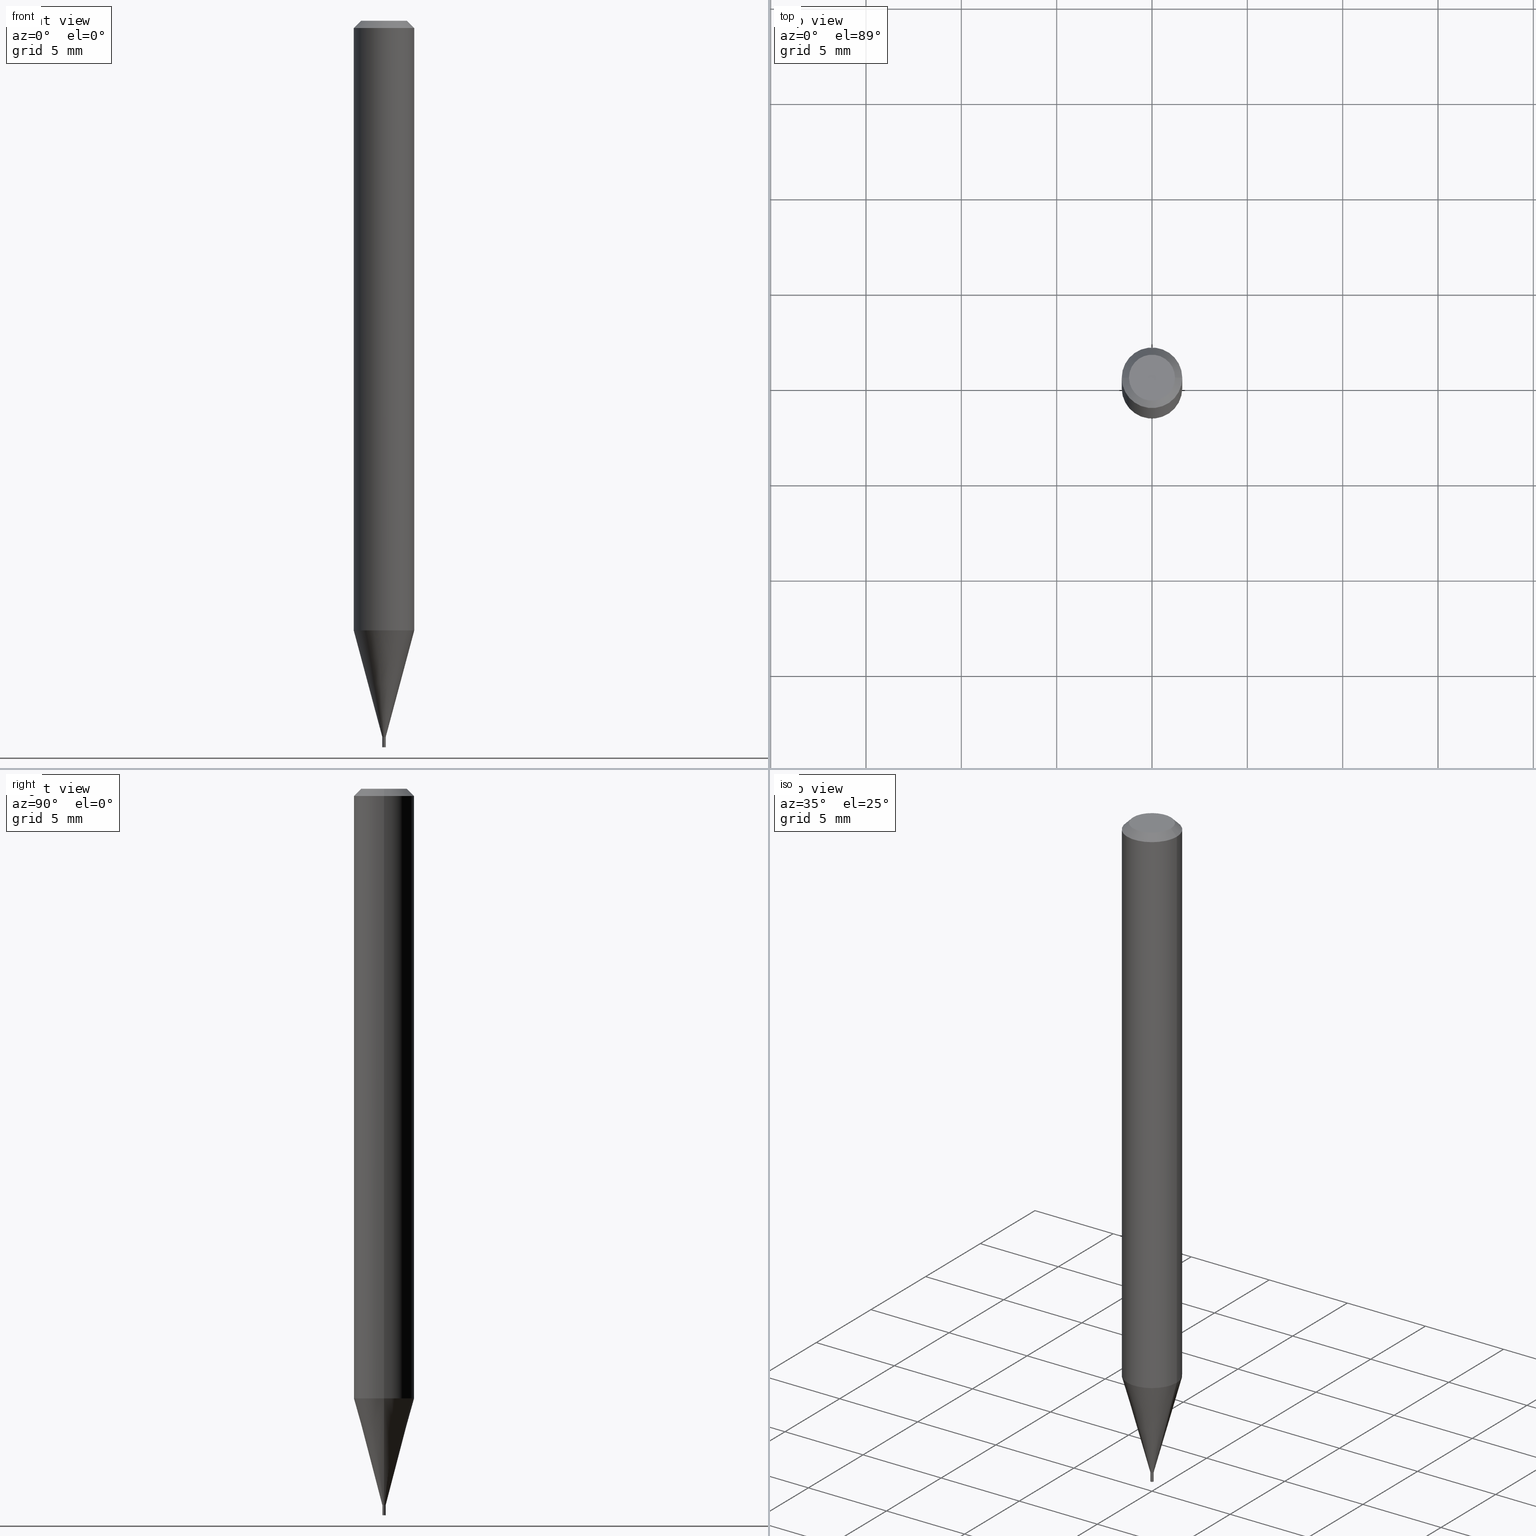
[diagram: canonical four-view strip — front | top / right | iso, engineering-drawing reading convention]
A machine part, canonical four-view strip (front | top / right | iso — engineering-drawing reading convention). The complete STEP part file that produces these views, byte-faithful:
ISO-10303-21;
HEADER;
FILE_DESCRIPTION (( 'STEP AP203' ),
    '1' );
FILE_NAME ('04113.STEP',
    '2024-03-14T17:01:19',
    ( '' ),
    ( '' ),
    'SwSTEP 2.0',
    'SolidWorks 2023',
    '' );
FILE_SCHEMA (( 'CONFIG_CONTROL_DESIGN' ));
ENDSEC;

DATA;
#1 = EDGE_LOOP ( 'NONE', ( #4, #152 ) ) ;
#2 = ADVANCED_FACE ( 'NONE', ( #253 ), #115, .T. ) ;
#3 = EDGE_CURVE ( 'NONE', #218, #86, #352, .T. ) ;
#4 = ORIENTED_EDGE ( 'NONE', *, *, #431, .T. ) ;
#5 = AXIS2_PLACEMENT_3D ( 'NONE', #92, #380, #197 ) ;
#6 = EDGE_CURVE ( 'NONE', #86, #117, #191, .T. ) ;
#7 = ORIENTED_EDGE ( 'NONE', *, *, #368, .F. ) ;
#8 = AXIS2_PLACEMENT_3D ( 'NONE', #246, #243, #70 ) ;
#9 = EDGE_LOOP ( 'NONE', ( #325, #121, #413, #80 ) ) ;
#10 = DIRECTION ( 'NONE',  ( -0.2588190451025215166, 5.211531920934551042E-15, 0.9659258262890679791 ) ) ;
#11 = ORIENTED_EDGE ( 'NONE', *, *, #14, .F. ) ;
#12 = DIRECTION ( 'NONE',  ( -2.445468806185136597E-29, 3.491481338843145583E-15, 1.000000000000000000 ) ) ;
#13 = ORIENTED_EDGE ( 'NONE', *, *, #179, .F. ) ;
#14 = EDGE_CURVE ( 'NONE', #293, #132, #345, .T. ) ;
#15 = APPROVAL ( #421, 'UNSPECIFIED' ) ;
#16 = CYLINDRICAL_SURFACE ( 'NONE', #426, 0.003500000000000000507 ) ;
#17 = VECTOR ( 'NONE', #47, 39.37007874015748143 ) ;
#18 = DESIGN_CONTEXT ( 'detailed design', #38, 'design' ) ;
#19 = DIRECTION ( 'NONE',  ( 1.000000000000000000, -6.982962677686265922E-15, 4.876176775795935793E-29 ) ) ;
#20 = CARTESIAN_POINT ( 'NONE',  ( 3.616848364347816762E-29, -5.163900900149011871E-15, -1.478999999999999648 ) ) ;
#21 = PRODUCT_DEFINITION_SHAPE ( 'NONE', 'NONE',  #284 ) ;
#22 = CARTESIAN_POINT ( 'NONE',  ( 3.078378148200359135E-29, -4.395108140884777792E-15, -1.258809002353435513 ) ) ;
#23 = AXIS2_PLACEMENT_3D ( 'NONE', #453, #343, #208 ) ;
#24 = ADVANCED_FACE ( 'NONE', ( #460 ), #350, .F. ) ;
#25 = LINE ( 'NONE', #102, #261 ) ;
#26 = DIRECTION ( 'NONE',  ( -1.000000000000000000, 6.982962677686266711E-15, 0.000000000000000000 ) ) ;
#27 = VECTOR ( 'NONE', #180, 39.37007874015748143 ) ;
#28 = CARTESIAN_POINT ( 'NONE',  ( 0.000000000000000000, 0.000000000000000000, 0.000000000000000000 ) ) ;
#29 = AXIS2_PLACEMENT_3D ( 'NONE', #442, #338, #26 ) ;
#30 = DIRECTION ( 'NONE',  ( 0.000000000000000000, 0.000000000000000000, 1.000000000000000000 ) ) ;
#31 = DIRECTION ( 'NONE',  ( -2.445468806185136597E-29, 3.491481338843145583E-15, 1.000000000000000000 ) ) ;
#32 = FACE_OUTER_BOUND ( 'NONE', #458, .T. ) ;
#33 = CC_DESIGN_DATE_AND_TIME_ASSIGNMENT ( #69, #214, ( #284 ) ) ;
#34 = PRODUCT_RELATED_PRODUCT_CATEGORY ( 'detail', '', ( #93 ) ) ;
#35 = AXIS2_PLACEMENT_3D ( 'NONE', #20, #236, #195 ) ;
#36 = APPLICATION_PROTOCOL_DEFINITION ( 'international standard', 'config_control_design', 1994, #38 ) ;
#37 = CC_DESIGN_PERSON_AND_ORGANIZATION_ASSIGNMENT ( #427, #142, ( #370 ) ) ;
#38 = APPLICATION_CONTEXT ( 'configuration controlled 3d designs of mechanical parts and assemblies' ) ;
#39 = CC_DESIGN_SECURITY_CLASSIFICATION ( #370, ( #466 ) ) ;
#40 = EDGE_LOOP ( 'NONE', ( #439, #161 ) ) ;
#41 = ORIENTED_EDGE ( 'NONE', *, *, #6, .F. ) ;
#42 = MANIFOLD_SOLID_BREP ( 'Body-Move/Copy2[1]', #164 ) ;
#43 = ORIENTED_EDGE ( 'NONE', *, *, #224, .F. ) ;
#44 = DIRECTION ( 'NONE',  ( 1.000000000000000000, -6.982962677686262766E-15, 0.000000000000000000 ) ) ;
#45 = APPROVAL_PERSON_ORGANIZATION ( #463, #412, #274 ) ;
#46 = ORIENTED_EDGE ( 'NONE', *, *, #95, .T. ) ;
#47 = DIRECTION ( 'NONE',  ( -2.445468806185136877E-29, 3.491481338843145188E-15, 1.000000000000000000 ) ) ;
#48 = EDGE_LOOP ( 'NONE', ( #404, #397 ) ) ;
#49 = CARTESIAN_POINT ( 'NONE',  ( -0.06250000000000000000, -1.779650970633650017E-15, -0.01499999999999999944 ) ) ;
#50 = ORIENTED_EDGE ( 'NONE', *, *, #240, .T. ) ;
#51 = CARTESIAN_POINT ( 'NONE',  ( 0.06250000000000000000, -4.831543308240170251E-15, -1.258809002353435513 ) ) ;
#52 = AXIS2_PLACEMENT_3D ( 'NONE', #294, #410, #273 ) ;
#53 = ORIENTED_EDGE ( 'NONE', *, *, #306, .F. ) ;
#54 = FACE_OUTER_BOUND ( 'NONE', #48, .T. ) ;
#55 = CIRCLE ( 'NONE', #417, 0.06250000000000000000 ) ;
#56 = CYLINDRICAL_SURFACE ( 'NONE', #199, 0.003499999999999649659 ) ;
#57 = DIRECTION ( 'NONE',  ( -2.445468806185136597E-29, 3.491481338843145583E-15, 1.000000000000000000 ) ) ;
#58 = EDGE_CURVE ( 'NONE', #259, #359, #76, .T. ) ;
#59 = ADVANCED_FACE ( 'NONE', ( #216 ), #310, .T. ) ;
#60 = DIRECTION ( 'NONE',  ( 1.000000000000000000, -6.982962677686266711E-15, 4.876176775795935232E-29 ) ) ;
#61 = COORDINATED_UNIVERSAL_TIME_OFFSET ( 5, 0, .BEHIND. ) ;
#62 = AXIS2_PLACEMENT_3D ( 'NONE', #160, #371, #138 ) ;
#63 = CONICAL_SURFACE ( 'NONE', #291, 0.003000000000000000496, 0.7853981633974723708 ) ;
#64 = DIRECTION ( 'NONE',  ( -2.445468806185136597E-29, 3.491481338843145583E-15, 1.000000000000000000 ) ) ;
#65 = LENGTH_MEASURE_WITH_UNIT ( LENGTH_MEASURE( 0.02539999999999999897 ), #106 );
#66 = APPROVAL_DATE_TIME ( #384, #15 ) ;
#67 = CARTESIAN_POINT ( 'NONE',  ( 3.616848364347816762E-29, -5.163900900149011871E-15, -1.478999999999999648 ) ) ;
#68 = APPROVAL_PERSON_ORGANIZATION ( #278, #15, #110 ) ;
#69 = DATE_AND_TIME ( #423, #114 ) ;
#70 = DIRECTION ( 'NONE',  ( 1.000000000000000000, -6.982962677686192558E-15, 0.000000000000000000 ) ) ;
#71 = DIRECTION ( 'NONE',  ( 1.000000000000000000, -6.982962677686266711E-15, 4.876176775795935793E-29 ) ) ;
#72 = CIRCLE ( 'NONE', #362, 0.003500000000000000507 ) ;
#73 = ADVANCED_FACE ( 'NONE', ( #32 ), #63, .T. ) ;
#74 = ORGANIZATION ( 'UNSPECIFIED', 'UNSPECIFIED', '' ) ;
#75 = VERTEX_POINT ( 'NONE', #210 ) ;
#76 = CIRCLE ( 'NONE', #8, 0.003500000000000000507 ) ;
#77 = ADVANCED_FACE ( 'NONE', ( #276 ), #389, .T. ) ;
#78 = FACE_OUTER_BOUND ( 'NONE', #200, .T. ) ;
#79 = VERTEX_POINT ( 'NONE', #105 ) ;
#80 = ORIENTED_EDGE ( 'NONE', *, *, #391, .F. ) ;
#81 = LINE ( 'NONE', #336, #444 ) ;
#82 = DIRECTION ( 'NONE',  ( 2.438088387897960049E-29, -3.491481338843145188E-15, -1.000000000000000000 ) ) ;
#83 = EDGE_LOOP ( 'NONE', ( #13, #295, #158, #232 ) ) ;
#84 = DIRECTION ( 'NONE',  ( -2.445468806185136597E-29, 3.491481338843145583E-15, 1.000000000000000000 ) ) ;
#85 = APPROVAL_PERSON_ORGANIZATION ( #183, #202, #211 ) ;
#86 = VERTEX_POINT ( 'NONE', #174 ) ;
#87 = AXIS2_PLACEMENT_3D ( 'NONE', #28, #145, #348 ) ;
#88 = FACE_OUTER_BOUND ( 'NONE', #123, .T. ) ;
#89 = ORIENTED_EDGE ( 'NONE', *, *, #224, .T. ) ;
#90 = CARTESIAN_POINT ( 'NONE',  ( -0.003500000000000000507, 2.486899575160351010E-17, -1.721627281589217151E-31 ) ) ;
#91 = CARTESIAN_POINT ( 'NONE',  ( -0.003000000000000000496, -5.139935390902100012E-15, -1.478999999999999648 ) ) ;
#92 = CARTESIAN_POINT ( 'NONE',  ( 3.869415696791911762E-44, -5.524500113600271674E-30, -1.582279719538967596E-15 ) ) ;
#93 = PRODUCT ( '04113', '04113', '', ( #175 ) ) ;
#94 = CARTESIAN_POINT ( 'NONE',  ( -0.003499999999999649659, 2.486899575160101718E-17, -1.721627281589044617E-31 ) ) ;
#95 = EDGE_CURVE ( 'NONE', #359, #259, #360, .T. ) ;
#96 = DIRECTION ( 'NONE',  ( -2.445468806185136877E-29, 3.491481338843145188E-15, 1.000000000000000000 ) ) ;
#97 = UNCERTAINTY_MEASURE_WITH_UNIT (LENGTH_MEASURE( 1.000000000000000082E-05 ), #351, 'distance_accuracy_value', 'NONE');
#98 = ADVANCED_BREP_SHAPE_REPRESENTATION ( '04113', ( #42, #354, #333 ), #120 ) ;
#99 = PLANE ( 'NONE',  #316 ) ;
#100 = ADVANCED_FACE ( 'NONE', ( #146 ), #286, .T. ) ;
#101 = EDGE_LOOP ( 'NONE', ( #438, #189, #363, #41 ) ) ;
#102 = CARTESIAN_POINT ( 'NONE',  ( 0.003499999999999649659, -5.188341269520912132E-15, -1.479000000000000092 ) ) ;
#103 = PERSON_AND_ORGANIZATION_ROLE ( 'design_owner' ) ;
#104 = CALENDAR_DATE ( 2024, 14, 3 ) ;
#105 = CARTESIAN_POINT ( 'NONE',  ( 0.003499999999999649659, -5.188341269520912132E-15, -1.479000000000000092 ) ) ;
#106 =( LENGTH_UNIT ( ) NAMED_UNIT ( * ) SI_UNIT ( $, .METRE. ) );
#107 = EDGE_CURVE ( 'NONE', #79, #408, #25, .T. ) ;
#108 = CIRCLE ( 'NONE', #155, 0.06250000000000000000 ) ;
#109 = DIRECTION ( 'NONE',  ( 1.000000000000000000, -6.982962677686336130E-15, 0.000000000000000000 ) ) ;
#110 = APPROVAL_ROLE ( '' ) ;
#111 = VERTEX_POINT ( 'NONE', #141 ) ;
#112 = CIRCLE ( 'NONE', #137, 0.003000000000000000496 ) ;
#113 = EDGE_CURVE ( 'NONE', #75, #218, #112, .T. ) ;
#114 = LOCAL_TIME ( 13, 1, 19.00000000000000000, #281 ) ;
#115 = CYLINDRICAL_SURFACE ( 'NONE', #424, 0.06250000000000000000 ) ;
#116 = DIRECTION ( 'NONE',  ( 1.000000000000000000, -6.982962677686338497E-15, 0.000000000000000000 ) ) ;
#117 = VERTEX_POINT ( 'NONE', #456 ) ;
#118 = CC_DESIGN_PERSON_AND_ORGANIZATION_ASSIGNMENT ( #457, #386, ( #284 ) ) ;
#119 = DIRECTION ( 'NONE',  ( -2.445468806185136597E-29, 3.491481338843145583E-15, 1.000000000000000000 ) ) ;
#120 =( GEOMETRIC_REPRESENTATION_CONTEXT ( 3 ) GLOBAL_UNCERTAINTY_ASSIGNED_CONTEXT ( ( #97 ) ) GLOBAL_UNIT_ASSIGNED_CONTEXT ( ( #351, #217, #242 ) ) REPRESENTATION_CONTEXT ( 'NONE', 'WORKASPACE' ) );
#121 = ORIENTED_EDGE ( 'NONE', *, *, #402, .T. ) ;
#122 = APPLICATION_CONTEXT ( 'configuration controlled 3d designs of mechanical parts and assemblies' ) ;
#123 = EDGE_LOOP ( 'NONE', ( #378, #89 ) ) ;
#124 = ORIENTED_EDGE ( 'NONE', *, *, #369, .T. ) ;
#125 = VECTOR ( 'NONE', #298, 39.37007874015748143 ) ;
#126 = VERTEX_POINT ( 'NONE', #143 ) ;
#127 = DIRECTION ( 'NONE',  ( 1.000000000000000000, -6.982962677686338497E-15, 0.000000000000000000 ) ) ;
#128 = PERSON ( 'UNSPECIFIED', 'UNSPECIFIED', 'UNSPECIFIED', ('UNSPECIFIED'), ('UNSPECIFIED'), ('UNSPECIFIED') ) ;
#129 = CARTESIAN_POINT ( 'NONE',  ( 2.444036937193810177E-17, 0.003499999999994836668, -1.479000000000000092 ) ) ;
#130 = FACE_OUTER_BOUND ( 'NONE', #101, .T. ) ;
#131 = CARTESIAN_POINT ( 'NONE',  ( 0.000000000000000000, 0.000000000000000000, 0.000000000000000000 ) ) ;
#132 = VERTEX_POINT ( 'NONE', #279 ) ;
#133 = CARTESIAN_POINT ( 'NONE',  ( 0.04749999999999999362, -4.035134999187605740E-16, -1.582279719538965032E-15 ) ) ;
#134 = ORIENTED_EDGE ( 'NONE', *, *, #396, .T. ) ;
#135 = DIRECTION ( 'NONE',  ( -1.000000000000000000, 6.982962677686265922E-15, -4.876176775795935793E-29 ) ) ;
#136 = DIRECTION ( 'NONE',  ( 1.000000000000000000, -6.982962677686338497E-15, 0.000000000000000000 ) ) ;
#137 = AXIS2_PLACEMENT_3D ( 'NONE', #67, #418, #241 ) ;
#138 = DIRECTION ( 'NONE',  ( 1.000000000000000000, -6.982962677686336130E-15, 0.000000000000000000 ) ) ;
#139 = CARTESIAN_POINT ( 'NONE',  ( -0.06250000000000000000, -3.951018931034715176E-15, -1.258809002353435513 ) ) ;
#140 = CIRCLE ( 'NONE', #285, 0.04749999999999999362 ) ;
#141 = CARTESIAN_POINT ( 'NONE',  ( -0.003500000000000000507, -5.175692458455261890E-15, -1.479000000000000092 ) ) ;
#142 = PERSON_AND_ORGANIZATION_ROLE ( 'classification_officer' ) ;
#143 = CARTESIAN_POINT ( 'NONE',  ( 0.003500000000000000507, -5.188341269520914499E-15, -1.479000000000000092 ) ) ;
#144 = EDGE_CURVE ( 'NONE', #75, #117, #213, .T. ) ;
#145 = DIRECTION ( 'NONE',  ( -2.445468806185136597E-29, 3.491481338843145583E-15, 1.000000000000000000 ) ) ;
#146 = FACE_OUTER_BOUND ( 'NONE', #9, .T. ) ;
#147 = ADVANCED_FACE ( 'NONE', ( #304 ), #451, .F. ) ;
#148 = EDGE_CURVE ( 'NONE', #117, #86, #260, .T. ) ;
#149 = DIRECTION ( 'NONE',  ( -2.445468806185136597E-29, 3.491481338843145583E-15, 1.000000000000000000 ) ) ;
#150 = VECTOR ( 'NONE', #448, 39.37007874015748143 ) ;
#151 = CARTESIAN_POINT ( 'NONE',  ( 3.668203209277705088E-31, -5.237222008264718399E-17, -0.01499999999999999944 ) ) ;
#152 = ORIENTED_EDGE ( 'NONE', *, *, #368, .T. ) ;
#153 = VECTOR ( 'NONE', #305, 39.37007874015748143 ) ;
#154 = ORIENTED_EDGE ( 'NONE', *, *, #400, .T. ) ;
#155 = AXIS2_PLACEMENT_3D ( 'NONE', #22, #170, #44 ) ;
#156 = VERTEX_POINT ( 'NONE', #49 ) ;
#157 = EDGE_CURVE ( 'NONE', #132, #156, #280, .T. ) ;
#158 = ORIENTED_EDGE ( 'NONE', *, *, #306, .T. ) ;
#159 = CARTESIAN_POINT ( 'NONE',  ( 0.003499999999999649659, -2.444036937189948765E-17, 1.706661871528406674E-31 ) ) ;
#160 = CARTESIAN_POINT ( 'NONE',  ( 3.615625629944724521E-29, -5.162155159479591157E-15, -1.478500000000000147 ) ) ;
#161 = ORIENTED_EDGE ( 'NONE', *, *, #95, .F. ) ;
#162 = FACE_OUTER_BOUND ( 'NONE', #365, .T. ) ;
#163 = FACE_OUTER_BOUND ( 'NONE', #227, .T. ) ;
#164 = CLOSED_SHELL ( 'NONE', ( #100, #223, #289, #181 ) ) ;
#165 = ORIENTED_EDGE ( 'NONE', *, *, #435, .T. ) ;
#166 = DIRECTION ( 'NONE',  ( 1.000000000000000000, -6.982962677686266711E-15, 4.876176775795935232E-29 ) ) ;
#167 = CONICAL_SURFACE ( 'NONE', #255, 0.003499999999999649659, 0.2617993877991502405 ) ;
#168 = CC_DESIGN_PERSON_AND_ORGANIZATION_ASSIGNMENT ( #344, #275, ( #466 ) ) ;
#169 = CARTESIAN_POINT ( 'NONE',  ( -0.04749999999999999362, 3.578768372314182896E-16, -1.582279719538970160E-15 ) ) ;
#170 = DIRECTION ( 'NONE',  ( -2.445468806185136597E-29, 3.491481338843145583E-15, 1.000000000000000000 ) ) ;
#171 = DIRECTION ( 'NONE',  ( 0.2588190451025215166, 1.565188264969620784E-15, 0.9659258262890679791 ) ) ;
#172 = SECURITY_CLASSIFICATION_LEVEL ( 'unclassified' ) ;
#173 = LOCAL_TIME ( 13, 1, 19.00000000000000000, #455 ) ;
#174 = CARTESIAN_POINT ( 'NONE',  ( -0.003499999999999650526, -5.137286163727990389E-15, -1.478500000000000147 ) ) ;
#175 = MECHANICAL_CONTEXT ( 'NONE', #122, 'mechanical' ) ;
#176 = DIRECTION ( 'NONE',  ( 0.7071067811865848762, -7.319954787623382263E-15, -0.7071067811865101582 ) ) ;
#177 = APPROVAL_STATUS ( 'not_yet_approved' ) ;
#178 = DIRECTION ( 'NONE',  ( -2.445468806185136597E-29, 3.491481338843145583E-15, 1.000000000000000000 ) ) ;
#179 = EDGE_CURVE ( 'NONE', #221, #86, #271, .T. ) ;
#180 = DIRECTION ( 'NONE',  ( -0.7071067811865645591, 7.493145998870415691E-15, 0.7071067811865304753 ) ) ;
#181 = ADVANCED_FACE ( 'NONE', ( #88 ), #441, .F. ) ;
#182 = AXIS2_PLACEMENT_3D ( 'NONE', #449, #84, #136 ) ;
#183 = PERSON_AND_ORGANIZATION ( #128, #74 ) ;
#184 = DIRECTION ( 'NONE',  ( 2.445468806185136597E-29, -3.491481338843145583E-15, -1.000000000000000000 ) ) ;
#185 = FACE_OUTER_BOUND ( 'NONE', #250, .T. ) ;
#186 = CC_DESIGN_APPROVAL ( #202, ( #284 ) ) ;
#187 = ADVANCED_FACE ( 'NONE', ( #163 ), #56, .F. ) ;
#188 = CIRCLE ( 'NONE', #182, 0.003499999999999649659 ) ;
#189 = ORIENTED_EDGE ( 'NONE', *, *, #190, .T. ) ;
#190 = EDGE_CURVE ( 'NONE', #218, #75, #395, .T. ) ;
#191 = CIRCLE ( 'NONE', #393, 0.003499999999999650526 ) ;
#192 = DIRECTION ( 'NONE',  ( -1.000000000000000000, 6.982962677686265922E-15, -4.876176775795935793E-29 ) ) ;
#193 = AXIS2_PLACEMENT_3D ( 'NONE', #379, #234, #440 ) ;
#194 = ORIENTED_EDGE ( 'NONE', *, *, #6, .T. ) ;
#195 = DIRECTION ( 'NONE',  ( 1.000000000000000000, -6.982962677686331397E-15, 0.000000000000000000 ) ) ;
#196 = ORIENTED_EDGE ( 'NONE', *, *, #267, .F. ) ;
#197 = DIRECTION ( 'NONE',  ( 1.000000000000000000, -6.982962677686267499E-15, 5.108144071313017768E-29 ) ) ;
#198 = DIRECTION ( 'NONE',  ( 2.438088387897960049E-29, -3.491481338843145188E-15, -1.000000000000000000 ) ) ;
#199 = AXIS2_PLACEMENT_3D ( 'NONE', #131, #206, #301 ) ;
#200 = EDGE_LOOP ( 'NONE', ( #7, #230, #464, #399 ) ) ;
#201 = DIRECTION ( 'NONE',  ( 1.000000000000000000, -6.982962677686266711E-15, 0.000000000000000000 ) ) ;
#202 = APPROVAL ( #244, 'UNSPECIFIED' ) ;
#203 = DIRECTION ( 'NONE',  ( -2.438088387897960049E-29, 3.491481338843145188E-15, 1.000000000000000000 ) ) ;
#204 = LINE ( 'NONE', #296, #387 ) ;
#205 = CONICAL_SURFACE ( 'NONE', #35, 0.003000000000000000496, 0.7853981633974723708 ) ;
#206 = DIRECTION ( 'NONE',  ( -2.445468806185136597E-29, 3.491481338843145583E-15, 1.000000000000000000 ) ) ;
#207 = PLANE ( 'NONE',  #193 ) ;
#208 = DIRECTION ( 'NONE',  ( 1.000000000000000000, -6.982962677686192558E-15, 0.000000000000000000 ) ) ;
#209 = CALENDAR_DATE ( 2024, 14, 3 ) ;
#210 = CARTESIAN_POINT ( 'NONE',  ( 0.003000000000000000496, -5.184849788182070703E-15, -1.478999999999999648 ) ) ;
#211 = APPROVAL_ROLE ( '' ) ;
#212 = SHAPE_DEFINITION_REPRESENTATION ( #21, #98 ) ;
#213 = LINE ( 'NONE', #422, #150 ) ;
#214 = DATE_TIME_ROLE ( 'creation_date' ) ;
#215 = DATE_AND_TIME ( #209, #245 ) ;
#216 = FACE_OUTER_BOUND ( 'NONE', #233, .T. ) ;
#217 =( NAMED_UNIT ( * ) PLANE_ANGLE_UNIT ( ) SI_UNIT ( $, .RADIAN. ) );
#218 = VERTEX_POINT ( 'NONE', #91 ) ;
#219 = CARTESIAN_POINT ( 'NONE',  ( -0.06250000000000000000, 4.440892098500626162E-16, -3.074334431409316114E-30 ) ) ;
#220 = CIRCLE ( 'NONE', #398, 0.003499999999999649659 ) ;
#221 = VERTEX_POINT ( 'NONE', #377 ) ;
#222 = DIRECTION ( 'NONE',  ( -1.000000000000000000, 6.982962677686266711E-15, 0.000000000000000000 ) ) ;
#223 = ADVANCED_FACE ( 'NONE', ( #416 ), #99, .F. ) ;
#224 = EDGE_CURVE ( 'NONE', #111, #126, #72, .T. ) ;
#225 = EDGE_LOOP ( 'NONE', ( #299, #46, #331, #43 ) ) ;
#226 = ADVANCED_FACE ( 'NONE', ( #78 ), #462, .T. ) ;
#227 = EDGE_LOOP ( 'NONE', ( #235, #268, #194, #53 ) ) ;
#228 = DIRECTION ( 'NONE',  ( -2.445468806185136597E-29, 3.491481338843145583E-15, 1.000000000000000000 ) ) ;
#229 = CIRCLE ( 'NONE', #5, 0.04749999999999999362 ) ;
#230 = ORIENTED_EDGE ( 'NONE', *, *, #14, .T. ) ;
#231 = LINE ( 'NONE', #300, #17 ) ;
#232 = ORIENTED_EDGE ( 'NONE', *, *, #148, .T. ) ;
#233 = EDGE_LOOP ( 'NONE', ( #358, #154, #436, #375 ) ) ;
#234 = DIRECTION ( 'NONE',  ( -2.438088387897960049E-29, 3.491481338843145188E-15, 1.000000000000000000 ) ) ;
#235 = ORIENTED_EDGE ( 'NONE', *, *, #318, .F. ) ;
#236 = DIRECTION ( 'NONE',  ( -2.445468806185136597E-29, 3.491481338843145583E-15, 1.000000000000000000 ) ) ;
#237 = ORIENTED_EDGE ( 'NONE', *, *, #157, .F. ) ;
#238 = CARTESIAN_POINT ( 'NONE',  ( 3.668203209277705088E-31, -5.237222008264718399E-17, -0.01499999999999999944 ) ) ;
#239 = CALENDAR_DATE ( 2024, 14, 3 ) ;
#240 = EDGE_CURVE ( 'NONE', #434, #156, #364, .T. ) ;
#241 = DIRECTION ( 'NONE',  ( 1.000000000000000000, -6.982962677686331397E-15, 0.000000000000000000 ) ) ;
#242 =( NAMED_UNIT ( * ) SI_UNIT ( $, .STERADIAN. ) SOLID_ANGLE_UNIT ( ) );
#243 = DIRECTION ( 'NONE',  ( -2.445468806185136597E-29, 3.491481338843145583E-15, 1.000000000000000000 ) ) ;
#244 = APPROVAL_STATUS ( 'not_yet_approved' ) ;
#245 = LOCAL_TIME ( 13, 1, 19.00000000000000000, #61 ) ;
#246 = CARTESIAN_POINT ( 'NONE',  ( 3.668203209277704895E-29, -5.237222008264718177E-15, -1.500000000000000222 ) ) ;
#247 = CARTESIAN_POINT ( 'NONE',  ( 0.000000000000000000, 0.000000000000000000, 0.000000000000000000 ) ) ;
#248 = CONICAL_SURFACE ( 'NONE', #29, 0.06250000000000000000, 0.7853981633975011256 ) ;
#249 = CARTESIAN_POINT ( 'NONE',  ( 0.003500000000000000507, -5.261662377636620016E-15, -1.500000000000000222 ) ) ;
#250 = EDGE_LOOP ( 'NONE', ( #124, #406, #196, #334 ) ) ;
#251 = AXIS2_PLACEMENT_3D ( 'NONE', #414, #339, #341 ) ;
#252 = DIRECTION ( 'NONE',  ( 1.000000000000000000, -6.982962677686192558E-15, 0.000000000000000000 ) ) ;
#253 = FACE_OUTER_BOUND ( 'NONE', #329, .T. ) ;
#254 = ADVANCED_FACE ( 'NONE', ( #185 ), #167, .T. ) ;
#255 = AXIS2_PLACEMENT_3D ( 'NONE', #326, #465, #116 ) ;
#256 = CARTESIAN_POINT ( 'NONE',  ( 3.616848364347817323E-29, -5.163900900149012660E-15, -1.479000000000000092 ) ) ;
#257 = ORIENTED_EDGE ( 'NONE', *, *, #400, .F. ) ;
#258 = ORIENTED_EDGE ( 'NONE', *, *, #267, .T. ) ;
#259 = VERTEX_POINT ( 'NONE', #249 ) ;
#260 = CIRCLE ( 'NONE', #62, 0.003499999999999650526 ) ;
#261 = VECTOR ( 'NONE', #171, 39.37007874015748143 ) ;
#262 = ORIENTED_EDGE ( 'NONE', *, *, #144, .F. ) ;
#263 = CARTESIAN_POINT ( 'NONE',  ( 3.616848364347817323E-29, -5.163900900149012660E-15, -1.479000000000000092 ) ) ;
#264 = CC_DESIGN_APPROVAL ( #412, ( #466 ) ) ;
#265 = EDGE_LOOP ( 'NONE', ( #292, #401, #445, #257 ) ) ;
#266 = CARTESIAN_POINT ( 'NONE',  ( -0.003500000000000000507, -5.175692458455261890E-15, -1.500000000000000222 ) ) ;
#267 = EDGE_CURVE ( 'NONE', #408, #434, #55, .T. ) ;
#268 = ORIENTED_EDGE ( 'NONE', *, *, #179, .T. ) ;
#269 = DIRECTION ( 'NONE',  ( 1.000000000000000000, -6.982962677686192558E-15, 0.000000000000000000 ) ) ;
#270 = AXIS2_PLACEMENT_3D ( 'NONE', #151, #184, #222 ) ;
#271 = LINE ( 'NONE', #94, #125 ) ;
#272 = LINE ( 'NONE', #342, #461 ) ;
#273 = DIRECTION ( 'NONE',  ( 1.000000000000000000, -6.982962677686331397E-15, 0.000000000000000000 ) ) ;
#274 = APPROVAL_ROLE ( '' ) ;
#275 = PERSON_AND_ORGANIZATION_ROLE ( 'design_supplier' ) ;
#276 = FACE_OUTER_BOUND ( 'NONE', #265, .T. ) ;
#277 = ADVANCED_FACE ( 'NONE', ( #130 ), #205, .T. ) ;
#278 = PERSON_AND_ORGANIZATION ( #128, #74 ) ;
#279 = CARTESIAN_POINT ( 'NONE',  ( 0.06250000000000000000, -4.888073874380388472E-16, -0.01499999999999999944 ) ) ;
#280 = CIRCLE ( 'NONE', #251, 0.06250000000000000000 ) ;
#281 = COORDINATED_UNIVERSAL_TIME_OFFSET ( 5, 0, .BEHIND. ) ;
#282 = PERSON_AND_ORGANIZATION ( #128, #74 ) ;
#283 = CARTESIAN_POINT ( 'NONE',  ( 3.616848364347816762E-29, -5.163900900149011871E-15, -1.478999999999999648 ) ) ;
#284 = PRODUCT_DEFINITION ( 'UNKNOWN', '', #466, #18 ) ;
#285 = AXIS2_PLACEMENT_3D ( 'NONE', #403, #12, #452 ) ;
#286 = CYLINDRICAL_SURFACE ( 'NONE', #324, 0.003500000000000000507 ) ;
#287 = PERSON_AND_ORGANIZATION_ROLE ( 'creator' ) ;
#288 = AXIS2_PLACEMENT_3D ( 'NONE', #315, #64, #383 ) ;
#289 = ADVANCED_FACE ( 'NONE', ( #367 ), #16, .T. ) ;
#290 = ADVANCED_FACE ( 'NONE', ( #54 ), #207, .F. ) ;
#291 = AXIS2_PLACEMENT_3D ( 'NONE', #283, #178, #425 ) ;
#292 = ORIENTED_EDGE ( 'NONE', *, *, #307, .F. ) ;
#293 = VERTEX_POINT ( 'NONE', #133 ) ;
#294 = CARTESIAN_POINT ( 'NONE',  ( 3.616848364347816762E-29, -5.163900900149011871E-15, -1.478999999999999648 ) ) ;
#295 = ORIENTED_EDGE ( 'NONE', *, *, #369, .F. ) ;
#296 = CARTESIAN_POINT ( 'NONE',  ( -0.003499999999999649659, -5.139031904397411104E-15, -1.479000000000000092 ) ) ;
#297 = AXIS2_PLACEMENT_3D ( 'NONE', #129, #198, #192 ) ;
#298 = DIRECTION ( 'NONE',  ( -2.445468806185136877E-29, 3.491481338843145188E-15, 1.000000000000000000 ) ) ;
#299 = ORIENTED_EDGE ( 'NONE', *, *, #402, .F. ) ;
#300 = CARTESIAN_POINT ( 'NONE',  ( 0.06250000000000000000, -4.364351673553916694E-16, 3.047610484872459871E-30 ) ) ;
#301 = DIRECTION ( 'NONE',  ( 1.000000000000000000, -6.982962677686266711E-15, 4.876176775795935793E-29 ) ) ;
#302 = ORIENTED_EDGE ( 'NONE', *, *, #3, .T. ) ;
#303 = DIRECTION ( 'NONE',  ( -2.445468806185136597E-29, 3.491481338843145583E-15, 1.000000000000000000 ) ) ;
#304 = FACE_OUTER_BOUND ( 'NONE', #1, .T. ) ;
#305 = DIRECTION ( 'NONE',  ( -2.445468806185136877E-29, 3.491481338843145188E-15, 1.000000000000000000 ) ) ;
#306 = EDGE_CURVE ( 'NONE', #79, #117, #335, .T. ) ;
#307 = EDGE_CURVE ( 'NONE', #221, #434, #204, .T. ) ;
#308 = DIRECTION ( 'NONE',  ( -2.445468806185136877E-29, 3.491481338843145188E-15, 1.000000000000000000 ) ) ;
#309 = VECTOR ( 'NONE', #176, 39.37007874015748143 ) ;
#310 = CYLINDRICAL_SURFACE ( 'NONE', #288, 0.06250000000000000000 ) ;
#311 = LOCAL_TIME ( 13, 1, 19.00000000000000000, #346 ) ;
#312 = CALENDAR_DATE ( 2024, 14, 3 ) ;
#313 = CARTESIAN_POINT ( 'NONE',  ( 0.000000000000000000, 0.000000000000000000, 0.000000000000000000 ) ) ;
#314 = DATE_AND_TIME ( #239, #311 ) ;
#315 = CARTESIAN_POINT ( 'NONE',  ( 0.000000000000000000, 0.000000000000000000, 0.000000000000000000 ) ) ;
#316 = AXIS2_PLACEMENT_3D ( 'NONE', #381, #203, #19 ) ;
#317 = DIRECTION ( 'NONE',  ( 1.000000000000000000, 0.000000000000000000, 0.000000000000000000 ) ) ;
#318 = EDGE_CURVE ( 'NONE', #221, #79, #220, .T. ) ;
#319 = DIRECTION ( 'NONE',  ( 1.000000000000000000, -6.982962677686338497E-15, 0.000000000000000000 ) ) ;
#320 = CARTESIAN_POINT ( 'NONE',  ( 3.615625629944724521E-29, -5.162155159479591157E-15, -1.478500000000000147 ) ) ;
#321 = VECTOR ( 'NONE', #308, 39.37007874015748143 ) ;
#322 = EDGE_CURVE ( 'NONE', #126, #111, #356, .T. ) ;
#323 = DIRECTION ( 'NONE',  ( -2.445468806185136877E-29, 3.491481338843145188E-15, 1.000000000000000000 ) ) ;
#324 = AXIS2_PLACEMENT_3D ( 'NONE', #313, #429, #60 ) ;
#325 = ORIENTED_EDGE ( 'NONE', *, *, #58, .T. ) ;
#326 = CARTESIAN_POINT ( 'NONE',  ( 3.616848364347817323E-29, -5.163900900149012660E-15, -1.479000000000000092 ) ) ;
#327 = LOCAL_TIME ( 13, 1, 19.00000000000000000, #349 ) ;
#328 = CC_DESIGN_PERSON_AND_ORGANIZATION_ASSIGNMENT ( #282, #287, ( #466 ) ) ;
#329 = EDGE_LOOP ( 'NONE', ( #258, #50, #237, #432 ) ) ;
#330 = AXIS2_PLACEMENT_3D ( 'NONE', #388, #385, #319 ) ;
#331 = ORIENTED_EDGE ( 'NONE', *, *, #391, .T. ) ;
#332 = VERTEX_POINT ( 'NONE', #169 ) ;
#333 = AXIS2_PLACEMENT_3D ( 'NONE', #419, #30, #317 ) ;
#334 = ORIENTED_EDGE ( 'NONE', *, *, #107, .F. ) ;
#335 = LINE ( 'NONE', #159, #153 ) ;
#336 = CARTESIAN_POINT ( 'NONE',  ( -0.06250000000000000000, 3.840629472727444916E-16, -0.01499999999999999944 ) ) ;
#337 = ORIENTED_EDGE ( 'NONE', *, *, #431, .F. ) ;
#338 = DIRECTION ( 'NONE',  ( 2.445468806185136597E-29, -3.491481338843145583E-15, -1.000000000000000000 ) ) ;
#339 = DIRECTION ( 'NONE',  ( -2.445468806185136597E-29, 3.491481338843145583E-15, 1.000000000000000000 ) ) ;
#340 = CARTESIAN_POINT ( 'NONE',  ( 0.000000000000000000, 0.000000000000000000, 0.000000000000000000 ) ) ;
#341 = DIRECTION ( 'NONE',  ( 1.000000000000000000, -6.982962677686266711E-15, 0.000000000000000000 ) ) ;
#342 = CARTESIAN_POINT ( 'NONE',  ( 0.003500000000000000507, -2.444036937190193743E-17, 1.706661871528577676E-31 ) ) ;
#343 = DIRECTION ( 'NONE',  ( -2.445468806185136597E-29, 3.491481338843145583E-15, 1.000000000000000000 ) ) ;
#344 = PERSON_AND_ORGANIZATION ( #128, #74 ) ;
#345 = LINE ( 'NONE', #459, #309 ) ;
#346 = COORDINATED_UNIVERSAL_TIME_OFFSET ( 5, 0, .BEHIND. ) ;
#347 = CIRCLE ( 'NONE', #454, 0.06250000000000000000 ) ;
#348 = DIRECTION ( 'NONE',  ( 1.000000000000000000, -6.982962677686266711E-15, 4.876176775795935793E-29 ) ) ;
#349 = COORDINATED_UNIVERSAL_TIME_OFFSET ( 5, 0, .BEHIND. ) ;
#350 = CYLINDRICAL_SURFACE ( 'NONE', #87, 0.003499999999999649659 ) ;
#351 =( CONVERSION_BASED_UNIT ( 'INCH', #65 ) LENGTH_UNIT ( ) NAMED_UNIT ( #407 ) );
#352 = LINE ( 'NONE', #394, #27 ) ;
#353 = APPROVAL_DATE_TIME ( #215, #412 ) ;
#354 = MANIFOLD_SOLID_BREP ( 'Body-Move/Copy2[2]', #361 ) ;
#355 = PERSON_AND_ORGANIZATION ( #128, #74 ) ;
#356 = CIRCLE ( 'NONE', #433, 0.003500000000000000507 ) ;
#357 = CC_DESIGN_PERSON_AND_ORGANIZATION_ASSIGNMENT ( #355, #103, ( #93 ) ) ;
#358 = ORIENTED_EDGE ( 'NONE', *, *, #240, .F. ) ;
#359 = VERTEX_POINT ( 'NONE', #266 ) ;
#360 = CIRCLE ( 'NONE', #23, 0.003500000000000000507 ) ;
#361 = CLOSED_SHELL ( 'NONE', ( #187, #73, #226, #2, #254, #77, #59, #447, #147, #290, #277, #24 ) ) ;
#362 = AXIS2_PLACEMENT_3D ( 'NONE', #256, #119, #252 ) ;
#363 = ORIENTED_EDGE ( 'NONE', *, *, #144, .T. ) ;
#364 = LINE ( 'NONE', #219, #437 ) ;
#365 = EDGE_LOOP ( 'NONE', ( #11, #337, #165, #134 ) ) ;
#366 = ORIENTED_EDGE ( 'NONE', *, *, #148, .F. ) ;
#367 = FACE_OUTER_BOUND ( 'NONE', #225, .T. ) ;
#368 = EDGE_CURVE ( 'NONE', #293, #332, #229, .T. ) ;
#369 = EDGE_CURVE ( 'NONE', #79, #221, #188, .T. ) ;
#370 = SECURITY_CLASSIFICATION ( '', '', #172 ) ;
#371 = DIRECTION ( 'NONE',  ( -2.445468806185136597E-29, 3.491481338843145583E-15, 1.000000000000000000 ) ) ;
#372 = ORIENTED_EDGE ( 'NONE', *, *, #113, .T. ) ;
#373 = LINE ( 'NONE', #90, #321 ) ;
#374 = CARTESIAN_POINT ( 'NONE',  ( 3.316907271900976096E-16, 0.04749999999999999362, -9.569852233645332438E-16 ) ) ;
#375 = ORIENTED_EDGE ( 'NONE', *, *, #396, .F. ) ;
#376 = CARTESIAN_POINT ( 'NONE',  ( 3.078378148200359135E-29, -4.395108140884777792E-15, -1.258809002353435513 ) ) ;
#377 = CARTESIAN_POINT ( 'NONE',  ( -0.003499999999999649659, -4.545025417716062746E-15, -1.479000000000000092 ) ) ;
#378 = ORIENTED_EDGE ( 'NONE', *, *, #322, .T. ) ;
#379 = CARTESIAN_POINT ( 'NONE',  ( 3.616848364347816762E-29, -5.163900900149011871E-15, -1.478999999999999648 ) ) ;
#380 = DIRECTION ( 'NONE',  ( -2.445468806185136597E-29, 3.491481338843145583E-15, 1.000000000000000000 ) ) ;
#381 = CARTESIAN_POINT ( 'NONE',  ( 3.576687321579069994E-29, -5.368277968210015545E-15, -1.500000000000000222 ) ) ;
#382 = APPROVAL_DATE_TIME ( #314, #202 ) ;
#383 = DIRECTION ( 'NONE',  ( 1.000000000000000000, -6.982962677686266711E-15, 4.876176775795935793E-29 ) ) ;
#384 = DATE_AND_TIME ( #104, #327 ) ;
#385 = DIRECTION ( 'NONE',  ( -2.445468806185136597E-29, 3.491481338843145583E-15, 1.000000000000000000 ) ) ;
#386 = PERSON_AND_ORGANIZATION_ROLE ( 'creator' ) ;
#387 = VECTOR ( 'NONE', #10, 39.37007874015748143 ) ;
#388 = CARTESIAN_POINT ( 'NONE',  ( 3.616848364347817323E-29, -5.163900900149012660E-15, -1.479000000000000092 ) ) ;
#389 = CONICAL_SURFACE ( 'NONE', #330, 0.003499999999999649659, 0.2617993877991502405 ) ;
#390 = APPLICATION_PROTOCOL_DEFINITION ( 'international standard', 'config_control_design', 1994, #122 ) ;
#391 = EDGE_CURVE ( 'NONE', #259, #126, #272, .T. ) ;
#392 = DATE_AND_TIME ( #312, #173 ) ;
#393 = AXIS2_PLACEMENT_3D ( 'NONE', #320, #31, #109 ) ;
#394 = CARTESIAN_POINT ( 'NONE',  ( -0.003000000000000000496, -5.142584618076208847E-15, -1.478999999999999648 ) ) ;
#395 = CIRCLE ( 'NONE', #52, 0.003000000000000000496 ) ;
#396 = EDGE_CURVE ( 'NONE', #156, #132, #347, .T. ) ;
#397 = ORIENTED_EDGE ( 'NONE', *, *, #190, .F. ) ;
#398 = AXIS2_PLACEMENT_3D ( 'NONE', #263, #303, #127 ) ;
#399 = ORIENTED_EDGE ( 'NONE', *, *, #435, .F. ) ;
#400 = EDGE_CURVE ( 'NONE', #434, #408, #108, .T. ) ;
#401 = ORIENTED_EDGE ( 'NONE', *, *, #318, .T. ) ;
#402 = EDGE_CURVE ( 'NONE', #359, #111, #373, .T. ) ;
#403 = CARTESIAN_POINT ( 'NONE',  ( 3.869415696791911762E-44, -5.524500113600271674E-30, -1.582279719538967596E-15 ) ) ;
#404 = ORIENTED_EDGE ( 'NONE', *, *, #113, .F. ) ;
#405 = CARTESIAN_POINT ( 'NONE',  ( 3.616848364347817323E-29, -5.163900900149012660E-15, -1.479000000000000092 ) ) ;
#406 = ORIENTED_EDGE ( 'NONE', *, *, #307, .T. ) ;
#407 = DIMENSIONAL_EXPONENTS ( 1.000000000000000000, 0.000000000000000000, 0.000000000000000000, 0.000000000000000000, 0.000000000000000000, 0.000000000000000000, 0.000000000000000000 ) ;
#408 = VERTEX_POINT ( 'NONE', #51 ) ;
#409 = DIRECTION ( 'NONE',  ( 1.000000000000000000, -6.982962677686262766E-15, 0.000000000000000000 ) ) ;
#410 = DIRECTION ( 'NONE',  ( -2.445468806185136597E-29, 3.491481338843145583E-15, 1.000000000000000000 ) ) ;
#411 = DIRECTION ( 'NONE',  ( -2.445468806185136597E-29, 3.491481338843145583E-15, 1.000000000000000000 ) ) ;
#412 = APPROVAL ( #177, 'UNSPECIFIED' ) ;
#413 = ORIENTED_EDGE ( 'NONE', *, *, #322, .F. ) ;
#414 = CARTESIAN_POINT ( 'NONE',  ( 3.668203209277705088E-31, -5.237222008264718399E-17, -0.01499999999999999944 ) ) ;
#415 = DIRECTION ( 'NONE',  ( -2.445468806185136597E-29, 3.491481338843145583E-15, 1.000000000000000000 ) ) ;
#416 = FACE_OUTER_BOUND ( 'NONE', #40, .T. ) ;
#417 = AXIS2_PLACEMENT_3D ( 'NONE', #376, #228, #409 ) ;
#418 = DIRECTION ( 'NONE',  ( -2.445468806185136597E-29, 3.491481338843145583E-15, 1.000000000000000000 ) ) ;
#419 = CARTESIAN_POINT ( 'NONE',  ( 0.000000000000000000, 0.000000000000000000, 0.000000000000000000 ) ) ;
#420 = CC_DESIGN_DATE_AND_TIME_ASSIGNMENT ( #392, #430, ( #370 ) ) ;
#421 = APPROVAL_STATUS ( 'not_yet_approved' ) ;
#422 = CARTESIAN_POINT ( 'NONE',  ( 0.003000000000000000496, -5.184849788182070703E-15, -1.478999999999999648 ) ) ;
#423 = CALENDAR_DATE ( 2024, 14, 3 ) ;
#424 = AXIS2_PLACEMENT_3D ( 'NONE', #247, #149, #71 ) ;
#425 = DIRECTION ( 'NONE',  ( 1.000000000000000000, -6.982962677686331397E-15, 0.000000000000000000 ) ) ;
#426 = AXIS2_PLACEMENT_3D ( 'NONE', #340, #415, #166 ) ;
#427 = PERSON_AND_ORGANIZATION ( #128, #74 ) ;
#428 = EDGE_CURVE ( 'NONE', #408, #132, #231, .T. ) ;
#429 = DIRECTION ( 'NONE',  ( -2.445468806185136597E-29, 3.491481338843145583E-15, 1.000000000000000000 ) ) ;
#430 = DATE_TIME_ROLE ( 'classification_date' ) ;
#431 = EDGE_CURVE ( 'NONE', #332, #293, #140, .T. ) ;
#432 = ORIENTED_EDGE ( 'NONE', *, *, #428, .F. ) ;
#433 = AXIS2_PLACEMENT_3D ( 'NONE', #405, #411, #269 ) ;
#434 = VERTEX_POINT ( 'NONE', #139 ) ;
#435 = EDGE_CURVE ( 'NONE', #332, #156, #81, .T. ) ;
#436 = ORIENTED_EDGE ( 'NONE', *, *, #428, .T. ) ;
#437 = VECTOR ( 'NONE', #323, 39.37007874015748143 ) ;
#438 = ORIENTED_EDGE ( 'NONE', *, *, #3, .F. ) ;
#439 = ORIENTED_EDGE ( 'NONE', *, *, #58, .F. ) ;
#440 = DIRECTION ( 'NONE',  ( 1.000000000000000000, -6.982962677686265922E-15, 4.876176775795935793E-29 ) ) ;
#441 = PLANE ( 'NONE',  #297 ) ;
#442 = CARTESIAN_POINT ( 'NONE',  ( 3.668203209277705088E-31, -5.237222008264718399E-17, -0.01499999999999999944 ) ) ;
#443 = CC_DESIGN_APPROVAL ( #15, ( #370 ) ) ;
#444 = VECTOR ( 'NONE', #446, 39.37007874015748143 ) ;
#445 = ORIENTED_EDGE ( 'NONE', *, *, #107, .T. ) ;
#446 = DIRECTION ( 'NONE',  ( -0.7071067811865848762, 2.468850131082647941E-15, -0.7071067811865101582 ) ) ;
#447 = ADVANCED_FACE ( 'NONE', ( #162 ), #248, .T. ) ;
#448 = DIRECTION ( 'NONE',  ( 0.7071067811865645591, -2.468850131082435343E-15, 0.7071067811865304753 ) ) ;
#449 = CARTESIAN_POINT ( 'NONE',  ( 3.616848364347817323E-29, -5.163900900149012660E-15, -1.479000000000000092 ) ) ;
#450 = AXIS2_PLACEMENT_3D ( 'NONE', #374, #82, #135 ) ;
#451 = PLANE ( 'NONE',  #450 ) ;
#452 = DIRECTION ( 'NONE',  ( 1.000000000000000000, -6.982962677686267499E-15, 5.108144071313017768E-29 ) ) ;
#453 = CARTESIAN_POINT ( 'NONE',  ( 3.668203209277704895E-29, -5.237222008264718177E-15, -1.500000000000000222 ) ) ;
#454 = AXIS2_PLACEMENT_3D ( 'NONE', #238, #57, #201 ) ;
#455 = COORDINATED_UNIVERSAL_TIME_OFFSET ( 5, 0, .BEHIND. ) ;
#456 = CARTESIAN_POINT ( 'NONE',  ( 0.003499999999999650526, -5.186595528851490629E-15, -1.478500000000000147 ) ) ;
#457 = PERSON_AND_ORGANIZATION ( #128, #74 ) ;
#458 = EDGE_LOOP ( 'NONE', ( #372, #302, #366, #262 ) ) ;
#459 = CARTESIAN_POINT ( 'NONE',  ( 0.06250000000000000000, -4.811533449433679005E-16, -0.01499999999999999944 ) ) ;
#460 = FACE_OUTER_BOUND ( 'NONE', #83, .T. ) ;
#461 = VECTOR ( 'NONE', #96, 39.37007874015748143 ) ;
#462 = CONICAL_SURFACE ( 'NONE', #270, 0.06250000000000000000, 0.7853981633975011256 ) ;
#463 = PERSON_AND_ORGANIZATION ( #128, #74 ) ;
#464 = ORIENTED_EDGE ( 'NONE', *, *, #157, .T. ) ;
#465 = DIRECTION ( 'NONE',  ( -2.445468806185136597E-29, 3.491481338843145583E-15, 1.000000000000000000 ) ) ;
#466 = PRODUCT_DEFINITION_FORMATION_WITH_SPECIFIED_SOURCE ( 'ANY', '', #93, .NOT_KNOWN. ) ;
ENDSEC;
END-ISO-10303-21;
